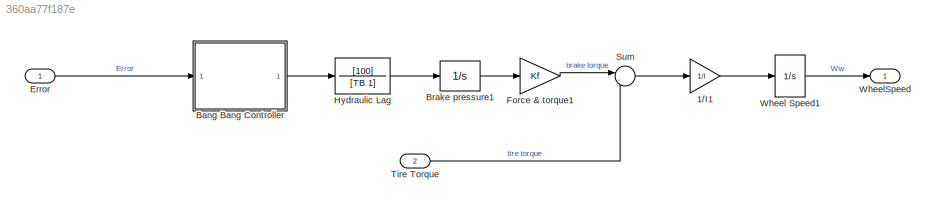
MODEL slx_360aa77f187e
KIND model
CONFIG AbsTol = 1e-6
CONFIG EnableMultiTasking = off
CONFIG FixedStep = auto
CONFIG MaxStep = 0.01
CONFIG MinStep = auto
CONFIG RelTol = 1e-3
CONFIG SampleTimeConstraint = Unconstrained
CONFIG Solver = ode45
CONFIG SolverName = ode45
CONFIG StartTime = 0.0
CONFIG StopTime = 25
WORKSPACE source: mxarray member
WORKSPACE I = 5
WORKSPACE Kf = 1
WORKSPACE PBmax = 1500
WORKSPACE Rr = 1.25
WORKSPACE TB = 0.01
WORKSPACE v0 = 45
BLOCK [Gain] 1//I1
  Gain = 1/I
  OutDataTypeStr = Inherit: Same as input
  ParamDataTypeStr = Inherit: Same as input
  SaturateOnIntegerOverflow = on
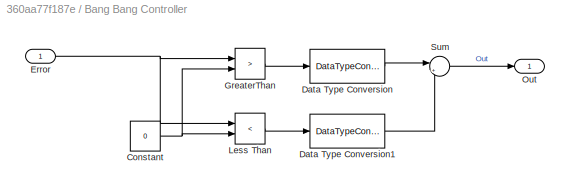
BLOCK [SubSystem] Bang Bang Controller
  Ports = [1, 1]
  RequestExecContextInheritance = off
BLOCK [Constant] Bang Bang Controller/Constant
  Value = 0
BLOCK [DataTypeConversion] Bang Bang Controller/Data Type Conversion
  OutDataTypeStr = double
  SaturateOnIntegerOverflow = off
BLOCK [DataTypeConversion] Bang Bang Controller/Data Type Conversion1
  OutDataTypeStr = double
  SaturateOnIntegerOverflow = off
BLOCK [Inport] Bang Bang Controller/Error
  SampleTime = 0
BLOCK [RelationalOperator] Bang Bang Controller/GreaterThan
  InputSameDT = off
  Operator = >
  OutDataTypeStr = boolean
  Ports = [2, 1]
  RndMeth = Simplest
BLOCK [RelationalOperator] Bang Bang Controller/Less Than
  InputSameDT = off
  Operator = <
  OutDataTypeStr = boolean
  Ports = [2, 1]
  RndMeth = Simplest
BLOCK [Outport] Bang Bang Controller/Out
BLOCK [Sum] Bang Bang Controller/Sum
  Inputs = |+-
  Ports = [2, 1]
BLOCK [Integrator] Brake pressure1
  LimitOutput = on
  LowerSaturationLimit = 0
  Ports = [1, 1]
  UpperSaturationLimit = PBmax
BLOCK [Inport] Error
  OutDataTypeStr = double
  PortDimensions = 1
  SampleTime = 0
  SamplingMode = Sample based
  SignalType = real
BLOCK [Gain] Force & torque1
  Gain = Kf
  OutDataTypeStr = Inherit: Same as input
  ParamDataTypeStr = Inherit: Same as input
  SaturateOnIntegerOverflow = on
BLOCK [TransferFcn] Hydraulic Lag 
  Denominator = [TB 1]
  Numerator = [100]
BLOCK [Sum] Sum
  InputSameDT = on
  Inputs = |-+
  OutDataTypeStr = Inherit: Same as first input
  Ports = [2, 1]
  SaturateOnIntegerOverflow = on
BLOCK [Inport] Tire Torque
  OutDataTypeStr = double
  Port = 2
  PortDimensions = 1
  SampleTime = 0
  SamplingMode = Sample based
  SignalType = real
BLOCK [Integrator] Wheel Speed1
  InitialCondition = v0/Rr
  LimitOutput = on
  LowerSaturationLimit = 0
  Ports = [1, 1]
  UpperSaturationLimit = 1000
BLOCK [Outport] WheelSpeed
  OutDataTypeStr = double
  PortDimensions = 1
  SampleTime = 0
  SamplingMode = Sample based
  SignalType = real
  VectorParamsAs1DForOutWhenUnconnected = off
LINE 1//I1:1 -> Wheel Speed1:1
NET Bang Bang Controller/Constant:1 -> Bang Bang Controller/GreaterThan:2, Bang Bang Controller/Less Than:2
LINE Bang Bang Controller/Data Type Conversion1:1 -> Bang Bang Controller/Sum:2
LINE Bang Bang Controller/Data Type Conversion:1 -> Bang Bang Controller/Sum:1
NET Bang Bang Controller/Error:1 -> Bang Bang Controller/GreaterThan:1, Bang Bang Controller/Less Than:1
LINE Bang Bang Controller/GreaterThan:1 -> Bang Bang Controller/Data Type Conversion:1
LINE Bang Bang Controller/Less Than:1 -> Bang Bang Controller/Data Type Conversion1:1
LINE Bang Bang Controller/Sum:1 -> Bang Bang Controller/Out:1
LINE Bang Bang Controller:1 -> Hydraulic Lag :1
LINE Brake pressure1:1 -> Force & torque1:1
LINE Error:1 -> Bang Bang Controller:1
LINE Force & torque1:1 -> Sum:1
LINE Hydraulic Lag :1 -> Brake pressure1:1
LINE Sum:1 -> 1//I1:1
LINE Tire Torque:1 -> Sum:2
LINE Wheel Speed1:1 -> WheelSpeed:1
note: NET lines group one-source signal fan-out (src -> all destinations, sorted); 1:1 wires keep LINE
